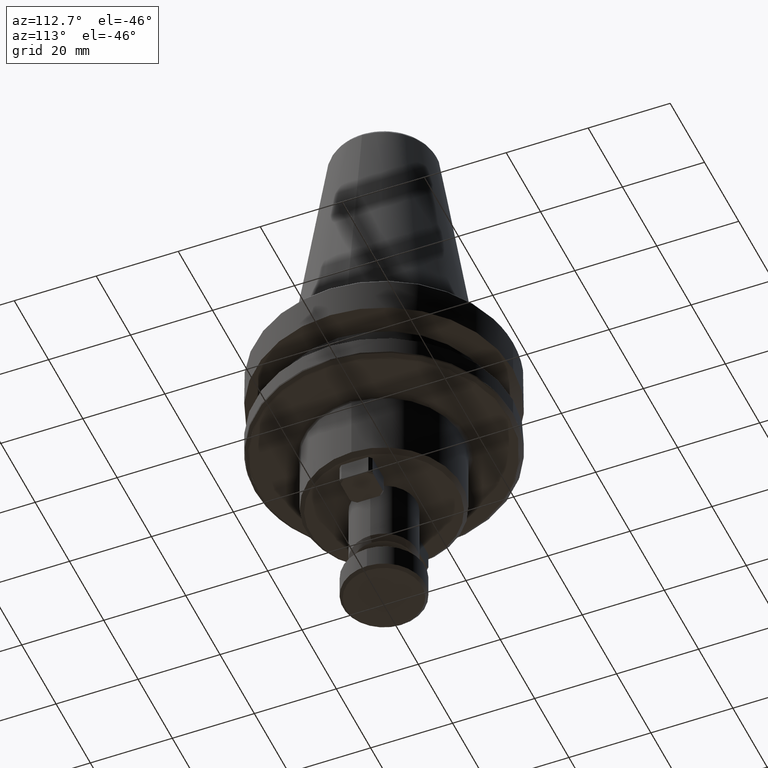
[diagram: clean part render]
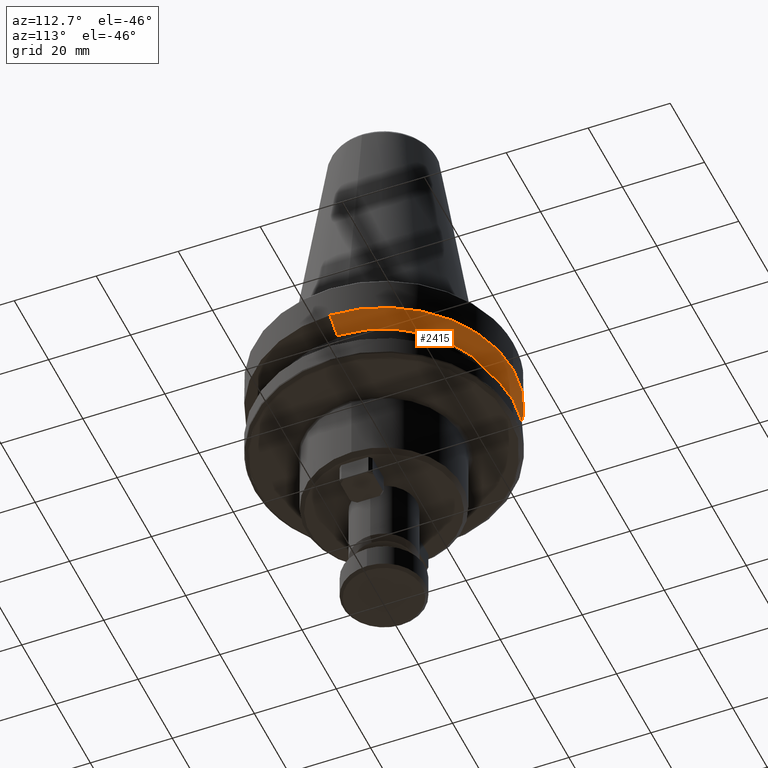
[diagram: same view with one face highlighted and labeled with its STEP entity id]
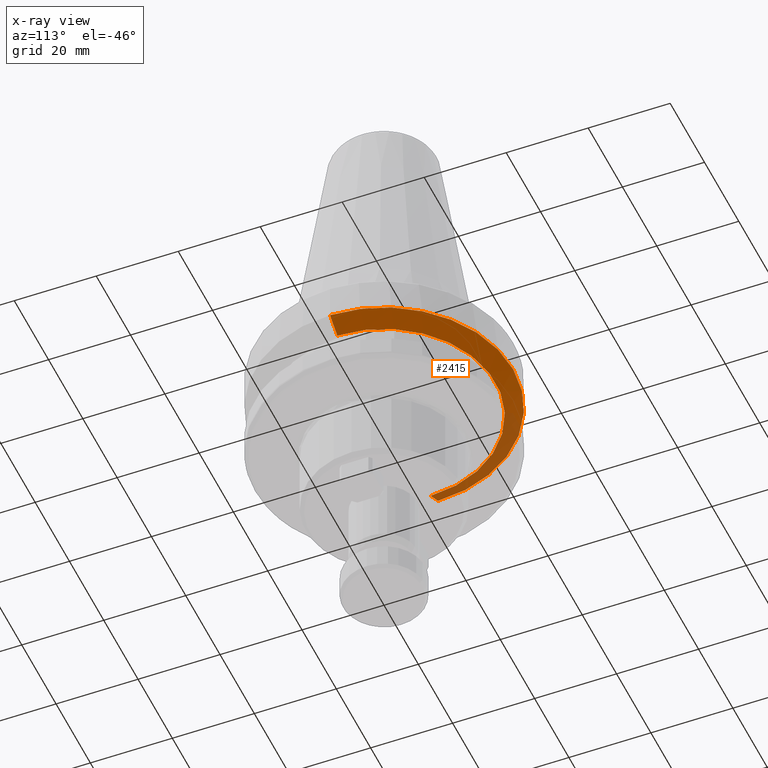
[diagram: x-ray of the same camera — body ghosted, the highlighted face saturated]
A machine part, auxiliary view. The second image highlights one B-rep face of the part: STEP entity #2415.
The next image is the same camera in x-ray: the body ghosted, the highlighted face saturated — about 22% of this face is hidden behind the body in this view.
In plain terms, the highlighted conical surface has half-angle 60 deg.
Its self-contained STEP definition (entity closure, byte-faithful):
#80 = DIRECTION ( 'NONE',  ( 1.000000000000000000, 0.0000000000000000000, 0.0000000000000000000 ) ) ;
#172 = EDGE_CURVE ( 'NONE', #3471, #284, #3361, .T. ) ;
#211 = CIRCLE ( 'NONE', #2959, 31.50000000000000000 ) ;
#236 = CARTESIAN_POINT ( 'NONE',  ( 0.0000000000000000000, 0.0000000000000000000, -11.61155670622306100 ) ) ;
#284 = VERTEX_POINT ( 'NONE', #2036 ) ;
#511 = CARTESIAN_POINT ( 'NONE',  ( 0.0000000000000000000, 0.0000000000000000000, -11.61155670622306100 ) ) ;
#744 = DIRECTION ( 'NONE',  ( -0.0000000000000000000, -0.0000000000000000000, 1.000000000000000000 ) ) ;
#808 = DIRECTION ( 'NONE',  ( 1.000000000000000000, 0.0000000000000000000, 0.0000000000000000000 ) ) ;
#924 = CARTESIAN_POINT ( 'NONE',  ( -31.50000000000000000, 3.857637417314162700E-015, -11.61155670622306100 ) ) ;
#930 = DIRECTION ( 'NONE',  ( 0.8660254037844381500, 0.0000000000000000000, 0.5000000000000008900 ) ) ;
#1014 = AXIS2_PLACEMENT_3D ( 'NONE', #3665, #1854, #80 ) ;
#1043 = EDGE_CURVE ( 'NONE', #1188, #3262, #211, .T. ) ;
#1072 = ORIENTED_EDGE ( 'NONE', *, *, #172, .F. ) ;
#1144 = CARTESIAN_POINT ( 'NONE',  ( 3.857637417314162700E-015, 31.50000000000000000, -11.61155670622306100 ) ) ;
#1188 = VERTEX_POINT ( 'NONE', #1144 ) ;
#1311 = ORIENTED_EDGE ( 'NONE', *, *, #3847, .T. ) ;
#1550 = DIRECTION ( 'NONE',  ( -0.8660254037844381500, 1.060575238724906300E-016, 0.5000000000000008900 ) ) ;
#1698 = VECTOR ( 'NONE', #930, 1000.000000000000000 ) ;
#1706 = DIRECTION ( 'NONE',  ( 1.000000000000000000, 0.0000000000000000000, 0.0000000000000000000 ) ) ;
#1854 = DIRECTION ( 'NONE',  ( -0.0000000000000000000, -0.0000000000000000000, 1.000000000000000000 ) ) ;
#1903 = CARTESIAN_POINT ( 'NONE',  ( 27.18988978342430200, 0.0000000000000000000, -14.10000000000000100 ) ) ;
#2020 = EDGE_CURVE ( 'NONE', #2748, #3262, #2448, .T. ) ;
#2036 = CARTESIAN_POINT ( 'NONE',  ( 31.50000000000000000, 0.0000000000000000000, -11.61155670622306100 ) ) ;
#2147 = CARTESIAN_POINT ( 'NONE',  ( -31.50000000000000000, 3.857637417314162700E-015, -11.61155670622306100 ) ) ;
#2182 = AXIS2_PLACEMENT_3D ( 'NONE', #511, #2604, #808 ) ;
#2205 = VECTOR ( 'NONE', #1550, 1000.000000000000000 ) ;
#2381 = EDGE_CURVE ( 'NONE', #284, #1188, #2597, .T. ) ;
#2415 = ADVANCED_FACE ( 'NONE', ( #3721 ), #3009, .T. ) ;
#2423 = DIRECTION ( 'NONE',  ( 1.000000000000000000, 0.0000000000000000000, 0.0000000000000000000 ) ) ;
#2448 = LINE ( 'NONE', #2147, #2205 ) ;
#2575 = CARTESIAN_POINT ( 'NONE',  ( -27.18988978342430200, 3.593719283279075200E-015, -14.10000000000000100 ) ) ;
#2596 = AXIS2_PLACEMENT_3D ( 'NONE', #3809, #3493, #1706 ) ;
#2597 = CIRCLE ( 'NONE', #2182, 31.50000000000000000 ) ;
#2604 = DIRECTION ( 'NONE',  ( -0.0000000000000000000, -0.0000000000000000000, 1.000000000000000000 ) ) ;
#2748 = VERTEX_POINT ( 'NONE', #2575 ) ;
#2815 = ORIENTED_EDGE ( 'NONE', *, *, #1043, .F. ) ;
#2845 = EDGE_LOOP ( 'NONE', ( #1311, #3503, #2815, #3440, #1072 ) ) ;
#2915 = CIRCLE ( 'NONE', #1014, 27.18988978342430200 ) ;
#2959 = AXIS2_PLACEMENT_3D ( 'NONE', #236, #744, #2423 ) ;
#3009 = CONICAL_SURFACE ( 'NONE', #2596, 31.50000000000000000, 1.047197551196596700 ) ;
#3016 = CARTESIAN_POINT ( 'NONE',  ( 31.50000000000000000, 0.0000000000000000000, -11.61155670622306100 ) ) ;
#3262 = VERTEX_POINT ( 'NONE', #924 ) ;
#3361 = LINE ( 'NONE', #3016, #1698 ) ;
#3440 = ORIENTED_EDGE ( 'NONE', *, *, #2381, .F. ) ;
#3471 = VERTEX_POINT ( 'NONE', #1903 ) ;
#3493 = DIRECTION ( 'NONE',  ( -0.0000000000000000000, -0.0000000000000000000, 1.000000000000000000 ) ) ;
#3503 = ORIENTED_EDGE ( 'NONE', *, *, #2020, .T. ) ;
#3665 = CARTESIAN_POINT ( 'NONE',  ( 0.0000000000000000000, 0.0000000000000000000, -14.10000000000000100 ) ) ;
#3721 = FACE_OUTER_BOUND ( 'NONE', #2845, .T. ) ;
#3809 = CARTESIAN_POINT ( 'NONE',  ( 0.0000000000000000000, 0.0000000000000000000, -11.61155670622306100 ) ) ;
#3847 = EDGE_CURVE ( 'NONE', #3471, #2748, #2915, .T. ) ;